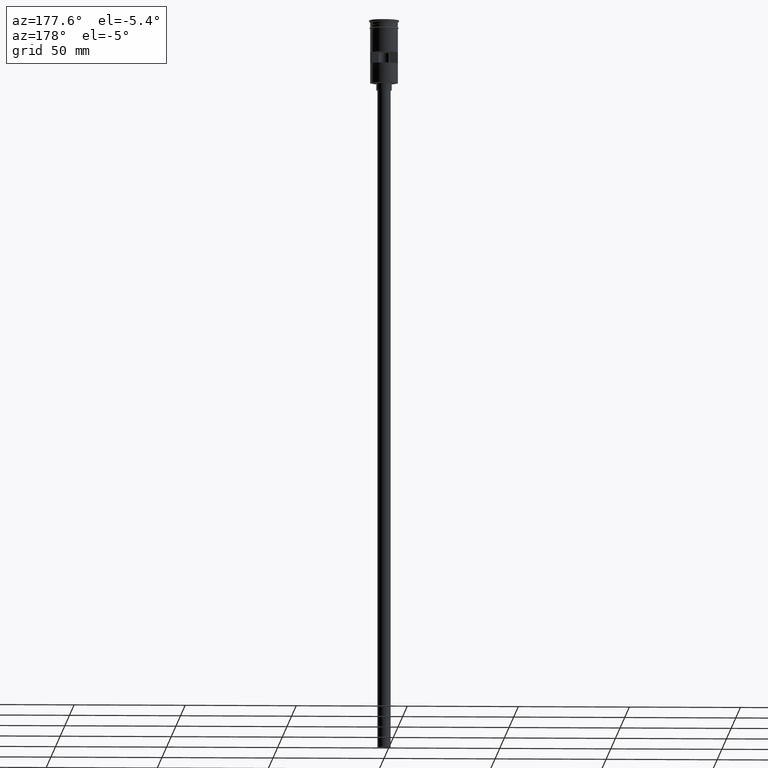
[diagram: clean part render]
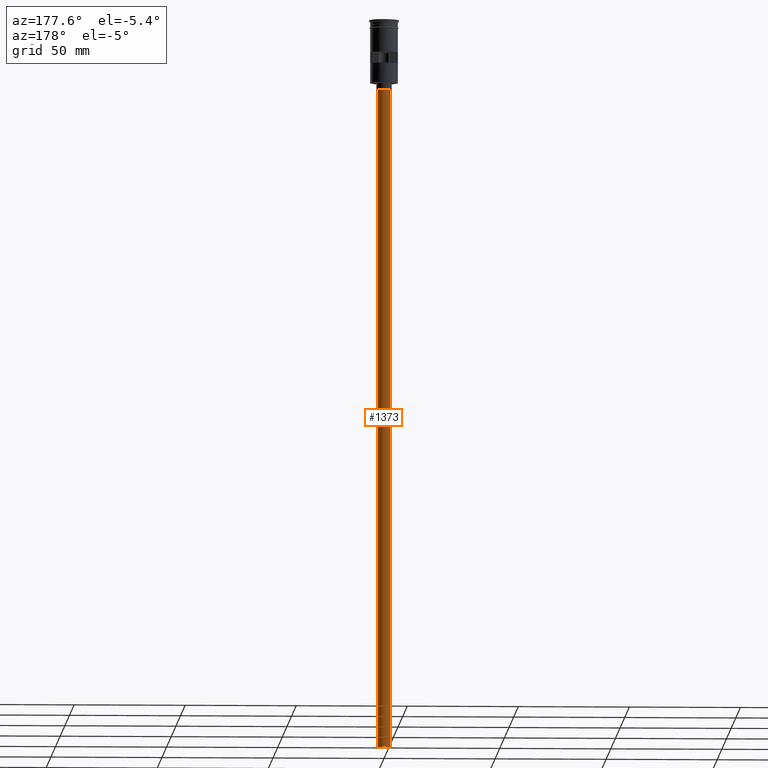
[diagram: same view with one face highlighted and labeled with its STEP entity id]
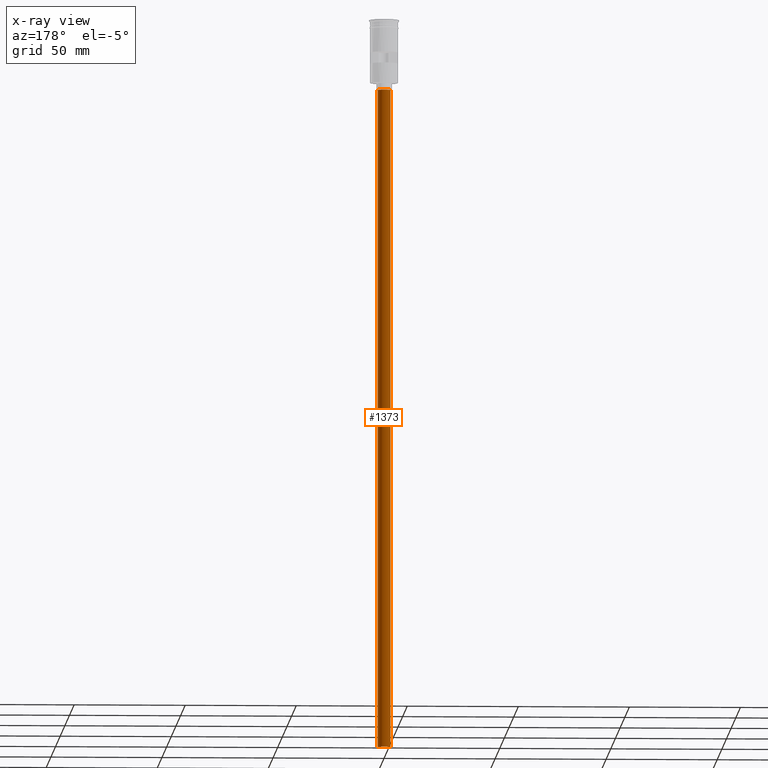
[diagram: x-ray of the same camera — body ghosted, the highlighted face saturated]
A machine part, auxiliary view. The second image highlights one B-rep face of the part: STEP entity #1373.
The next image is the same camera in x-ray: the body ghosted, the highlighted face saturated — about 0% of this face is hidden behind the body in this view.
In plain terms, the highlighted cylindrical surface (edge-blend (fillet) strip) has radius 3 mm, axis along (-0, -0, 1).
Its self-contained STEP definition (entity closure, byte-faithful):
#14 = VECTOR ( 'NONE', #1347, 1000.000000000000000 ) ;
#197 = CARTESIAN_POINT ( 'NONE',  ( -3.000000000000000444, 3.673940397442060361E-16, -31.50000000000000000 ) ) ;
#219 = ORIENTED_EDGE ( 'NONE', *, *, #826, .F. ) ;
#221 = AXIS2_PLACEMENT_3D ( 'NONE', #1529, #1059, #1150 ) ;
#245 = VERTEX_POINT ( 'NONE', #679 ) ;
#250 = DIRECTION ( 'NONE',  ( -0.000000000000000000, -0.000000000000000000, 1.000000000000000000 ) ) ;
#263 = AXIS2_PLACEMENT_3D ( 'NONE', #372, #970, #1368 ) ;
#308 = CARTESIAN_POINT ( 'NONE',  ( 3.000000000000000444, 0.000000000000000000, -31.50000000000000000 ) ) ;
#372 = CARTESIAN_POINT ( 'NONE',  ( 0.000000000000000000, 0.000000000000000000, -328.5000000000000000 ) ) ;
#442 = ORIENTED_EDGE ( 'NONE', *, *, #1361, .F. ) ;
#452 = DIRECTION ( 'NONE',  ( -1.000000000000000000, 0.000000000000000000, 0.000000000000000000 ) ) ;
#503 = VERTEX_POINT ( 'NONE', #308 ) ;
#590 = CIRCLE ( 'NONE', #1326, 3.000000000000000444 ) ;
#679 = CARTESIAN_POINT ( 'NONE',  ( 3.000000000000000444, 0.000000000000000000, -328.5000000000000000 ) ) ;
#720 = ORIENTED_EDGE ( 'NONE', *, *, #1003, .T. ) ;
#742 = EDGE_LOOP ( 'NONE', ( #219, #720, #1238, #442 ) ) ;
#826 = EDGE_CURVE ( 'NONE', #1219, #245, #1046, .T. ) ;
#861 = CARTESIAN_POINT ( 'NONE',  ( 0.000000000000000000, 0.000000000000000000, -31.50000000000000000 ) ) ;
#963 = FACE_OUTER_BOUND ( 'NONE', #742, .T. ) ;
#970 = DIRECTION ( 'NONE',  ( -0.000000000000000000, -0.000000000000000000, 1.000000000000000000 ) ) ;
#987 = LINE ( 'NONE', #1343, #1250 ) ;
#996 = DIRECTION ( 'NONE',  ( 0.000000000000000000, 0.000000000000000000, -1.000000000000000000 ) ) ;
#1003 = EDGE_CURVE ( 'NONE', #1219, #1230, #1569, .T. ) ;
#1046 = CIRCLE ( 'NONE', #221, 3.000000000000000444 ) ;
#1059 = DIRECTION ( 'NONE',  ( 0.000000000000000000, 0.000000000000000000, -1.000000000000000000 ) ) ;
#1087 = CARTESIAN_POINT ( 'NONE',  ( -3.000000000000000444, 3.673940397442060361E-16, -328.5000000000000000 ) ) ;
#1150 = DIRECTION ( 'NONE',  ( -1.000000000000000000, 0.000000000000000000, 0.000000000000000000 ) ) ;
#1219 = VERTEX_POINT ( 'NONE', #1426 ) ;
#1230 = VERTEX_POINT ( 'NONE', #197 ) ;
#1238 = ORIENTED_EDGE ( 'NONE', *, *, #1324, .T. ) ;
#1250 = VECTOR ( 'NONE', #250, 1000.000000000000000 ) ;
#1324 = EDGE_CURVE ( 'NONE', #1230, #503, #590, .T. ) ;
#1326 = AXIS2_PLACEMENT_3D ( 'NONE', #861, #996, #452 ) ;
#1343 = CARTESIAN_POINT ( 'NONE',  ( 3.000000000000000444, 0.000000000000000000, -328.5000000000000000 ) ) ;
#1347 = DIRECTION ( 'NONE',  ( -0.000000000000000000, -0.000000000000000000, 1.000000000000000000 ) ) ;
#1361 = EDGE_CURVE ( 'NONE', #245, #503, #987, .T. ) ;
#1368 = DIRECTION ( 'NONE',  ( 1.000000000000000000, 0.000000000000000000, 0.000000000000000000 ) ) ;
#1373 = ADVANCED_FACE ( 'NONE', ( #963 ), #1487, .T. ) ;
#1426 = CARTESIAN_POINT ( 'NONE',  ( -3.000000000000000444, 3.673940397442060361E-16, -328.5000000000000000 ) ) ;
#1487 = CYLINDRICAL_SURFACE ( 'NONE', #263, 3.000000000000000444 ) ;
#1529 = CARTESIAN_POINT ( 'NONE',  ( 0.000000000000000000, 0.000000000000000000, -328.5000000000000000 ) ) ;
#1569 = LINE ( 'NONE', #1087, #14 ) ;